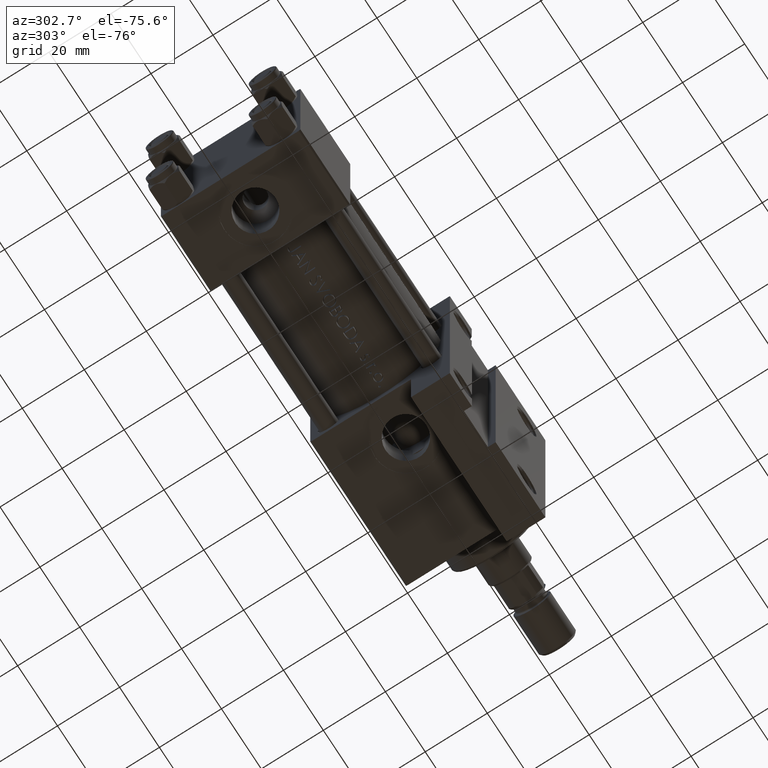
[diagram: clean part render]
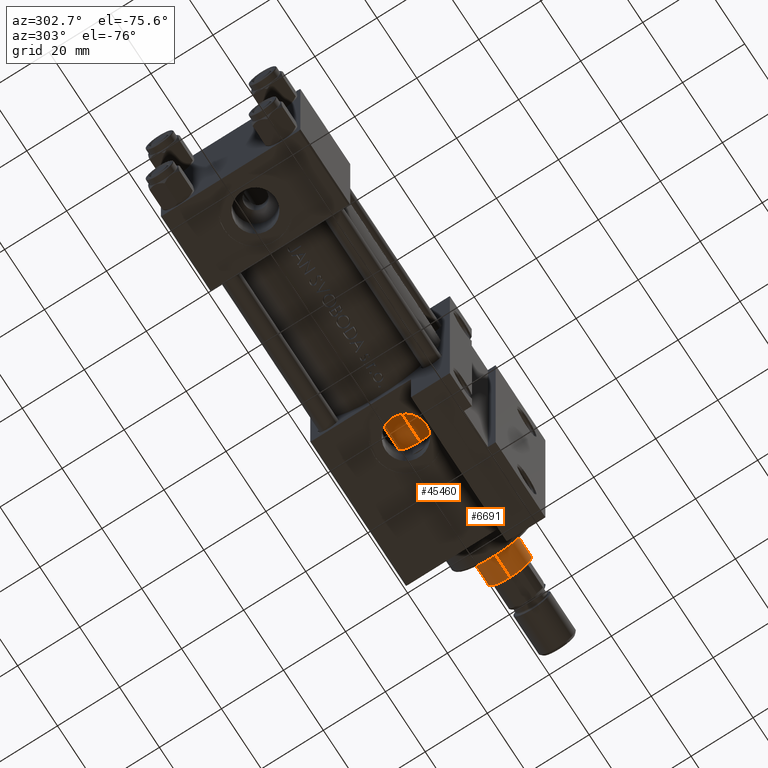
[diagram: same view with one multi-face feature highlighted, each face labeled with its STEP entity id]
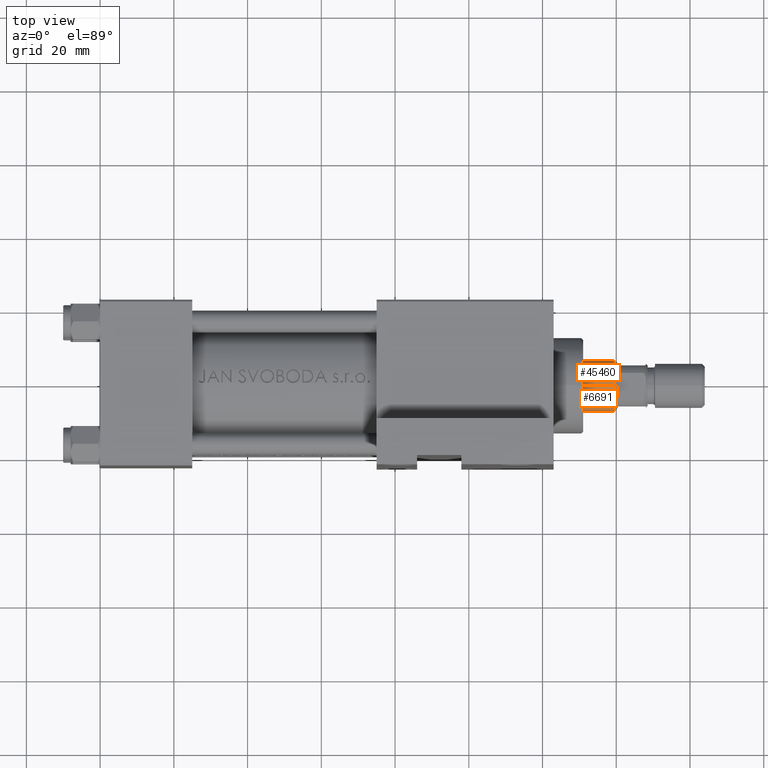
[diagram: same view with one multi-face feature highlighted, each face labeled with its STEP entity id]
A machine part, auxiliary view. The highlighted faces form ONE feature: a constant-radius fillet chain: 2 tangent blend faces with common blend radius 7 mm. The faces share edges in the B-rep.
A second angle (top view) of the same feature is appended — it is thin or edge-on in the first view.
Their STEP definitions:
[1] entity #45460 (Cylinder):
#900 = EDGE_CURVE ( 'NONE', #22090, #5010, #2835, .T. ) ;
#1124 = FACE_OUTER_BOUND ( 'NONE', #17548, .T. ) ;
#2403 = VECTOR ( 'NONE', #28901, 1000.000000000000000 ) ;
#2835 = LINE ( 'NONE', #6498, #2403 ) ;
#3569 = CARTESIAN_POINT ( 'NONE',  ( 7.000000000000000000, 8.572527594031473190E-16, 114.4999999999999858 ) ) ;
#3997 = DIRECTION ( 'NONE',  ( 1.000000000000000000, 0.000000000000000000, 0.000000000000000000 ) ) ;
#4786 = CARTESIAN_POINT ( 'NONE',  ( 0.000000000000000000, 0.000000000000000000, 115.0000000000000000 ) ) ;
#5010 = VERTEX_POINT ( 'NONE', #38528 ) ;
#6390 = CARTESIAN_POINT ( 'NONE',  ( 7.000000000000000000, 8.572527594031473190E-16, 30.00000000000000000 ) ) ;
#6498 = CARTESIAN_POINT ( 'NONE',  ( -7.000000000000000000, 0.000000000000000000, 115.0000000000000000 ) ) ;
#6808 = ORIENTED_EDGE ( 'NONE', *, *, #32160, .T. ) ;
#8142 = DIRECTION ( 'NONE',  ( 0.000000000000000000, 0.000000000000000000, -1.000000000000000000 ) ) ;
#11304 = DIRECTION ( 'NONE',  ( 0.000000000000000000, 0.000000000000000000, 1.000000000000000000 ) ) ;
#11622 = DIRECTION ( 'NONE',  ( -0.000000000000000000, -0.000000000000000000, -1.000000000000000000 ) ) ;
#14195 = ORIENTED_EDGE ( 'NONE', *, *, #24341, .T. ) ;
#15050 = CYLINDRICAL_SURFACE ( 'NONE', #37541, 7.000000000000000000 ) ;
#17548 = EDGE_LOOP ( 'NONE', ( #22791, #14195, #19880, #6808 ) ) ;
#18877 = CARTESIAN_POINT ( 'NONE',  ( 0.000000000000000000, 0.000000000000000000, 30.00000000000000000 ) ) ;
#18977 = CARTESIAN_POINT ( 'NONE',  ( -7.000000000000000000, 0.000000000000000000, 114.4999999999999858 ) ) ;
#19344 = DIRECTION ( 'NONE',  ( 1.000000000000000000, 0.000000000000000000, 0.000000000000000000 ) ) ;
#19880 = ORIENTED_EDGE ( 'NONE', *, *, #900, .T. ) ;
#22090 = VERTEX_POINT ( 'NONE', #18977 ) ;
#22791 = ORIENTED_EDGE ( 'NONE', *, *, #30390, .F. ) ;
#23962 = AXIS2_PLACEMENT_3D ( 'NONE', #18877, #11304, #19344 ) ;
#24341 = EDGE_CURVE ( 'NONE', #44600, #22090, #41763, .T. ) ;
#28901 = DIRECTION ( 'NONE',  ( -0.000000000000000000, -0.000000000000000000, -1.000000000000000000 ) ) ;
#30107 = AXIS2_PLACEMENT_3D ( 'NONE', #37626, #8142, #3997 ) ;
#30390 = EDGE_CURVE ( 'NONE', #44600, #42551, #40089, .T. ) ;
#32160 = EDGE_CURVE ( 'NONE', #5010, #42551, #39541, .T. ) ;
#34276 = DIRECTION ( 'NONE',  ( -1.000000000000000000, 0.000000000000000000, 0.000000000000000000 ) ) ;
#37541 = AXIS2_PLACEMENT_3D ( 'NONE', #4786, #11622, #34276 ) ;
#37626 = CARTESIAN_POINT ( 'NONE',  ( 0.000000000000000000, 0.000000000000000000, 114.4999999999999858 ) ) ;
#38528 = CARTESIAN_POINT ( 'NONE',  ( -7.000000000000000000, 0.000000000000000000, 30.00000000000000000 ) ) ;
#39541 = CIRCLE ( 'NONE', #23962, 7.000000000000000000 ) ;
#40089 = LINE ( 'NONE', #47391, #41044 ) ;
#41044 = VECTOR ( 'NONE', #46678, 1000.000000000000000 ) ;
#41763 = CIRCLE ( 'NONE', #30107, 7.000000000000000000 ) ;
#42551 = VERTEX_POINT ( 'NONE', #6390 ) ;
#44600 = VERTEX_POINT ( 'NONE', #3569 ) ;
#45460 = ADVANCED_FACE ( 'NONE', ( #1124 ), #15050, .T. ) ;
#46678 = DIRECTION ( 'NONE',  ( -0.000000000000000000, -0.000000000000000000, -1.000000000000000000 ) ) ;
#47391 = CARTESIAN_POINT ( 'NONE',  ( 7.000000000000000000, 8.572527594031473190E-16, 115.0000000000000000 ) ) ;
[2] entity #6691 (Cylinder):
#767 = DIRECTION ( 'NONE',  ( 0.000000000000000000, 0.000000000000000000, 1.000000000000000000 ) ) ;
#900 = EDGE_CURVE ( 'NONE', #22090, #5010, #2835, .T. ) ;
#950 = DIRECTION ( 'NONE',  ( 0.000000000000000000, 0.000000000000000000, -1.000000000000000000 ) ) ;
#1476 = DIRECTION ( 'NONE',  ( 1.000000000000000000, 0.000000000000000000, 0.000000000000000000 ) ) ;
#1721 = EDGE_CURVE ( 'NONE', #42551, #5010, #16466, .T. ) ;
#2403 = VECTOR ( 'NONE', #28901, 1000.000000000000000 ) ;
#2835 = LINE ( 'NONE', #6498, #2403 ) ;
#3569 = CARTESIAN_POINT ( 'NONE',  ( 7.000000000000000000, 8.572527594031473190E-16, 114.4999999999999858 ) ) ;
#5010 = VERTEX_POINT ( 'NONE', #38528 ) ;
#6165 = FACE_OUTER_BOUND ( 'NONE', #8542, .T. ) ;
#6390 = CARTESIAN_POINT ( 'NONE',  ( 7.000000000000000000, 8.572527594031473190E-16, 30.00000000000000000 ) ) ;
#6498 = CARTESIAN_POINT ( 'NONE',  ( -7.000000000000000000, 0.000000000000000000, 115.0000000000000000 ) ) ;
#6691 = ADVANCED_FACE ( 'NONE', ( #6165 ), #13248, .T. ) ;
#8542 = EDGE_LOOP ( 'NONE', ( #9642, #34406, #27823, #46988 ) ) ;
#8973 = DIRECTION ( 'NONE',  ( 1.000000000000000000, 0.000000000000000000, 0.000000000000000000 ) ) ;
#9642 = ORIENTED_EDGE ( 'NONE', *, *, #38317, .T. ) ;
#13248 = CYLINDRICAL_SURFACE ( 'NONE', #48173, 7.000000000000000000 ) ;
#16466 = CIRCLE ( 'NONE', #36690, 7.000000000000000000 ) ;
#18977 = CARTESIAN_POINT ( 'NONE',  ( -7.000000000000000000, 0.000000000000000000, 114.4999999999999858 ) ) ;
#19238 = CARTESIAN_POINT ( 'NONE',  ( 0.000000000000000000, 0.000000000000000000, 114.4999999999999858 ) ) ;
#20488 = CARTESIAN_POINT ( 'NONE',  ( 0.000000000000000000, 0.000000000000000000, 30.00000000000000000 ) ) ;
#20791 = DIRECTION ( 'NONE',  ( -1.000000000000000000, 0.000000000000000000, 0.000000000000000000 ) ) ;
#22090 = VERTEX_POINT ( 'NONE', #18977 ) ;
#27823 = ORIENTED_EDGE ( 'NONE', *, *, #1721, .T. ) ;
#28095 = CARTESIAN_POINT ( 'NONE',  ( 0.000000000000000000, 0.000000000000000000, 115.0000000000000000 ) ) ;
#28901 = DIRECTION ( 'NONE',  ( -0.000000000000000000, -0.000000000000000000, -1.000000000000000000 ) ) ;
#30390 = EDGE_CURVE ( 'NONE', #44600, #42551, #40089, .T. ) ;
#34406 = ORIENTED_EDGE ( 'NONE', *, *, #30390, .T. ) ;
#36690 = AXIS2_PLACEMENT_3D ( 'NONE', #20488, #767, #1476 ) ;
#38317 = EDGE_CURVE ( 'NONE', #22090, #44600, #42812, .T. ) ;
#38528 = CARTESIAN_POINT ( 'NONE',  ( -7.000000000000000000, 0.000000000000000000, 30.00000000000000000 ) ) ;
#40089 = LINE ( 'NONE', #47391, #41044 ) ;
#41044 = VECTOR ( 'NONE', #46678, 1000.000000000000000 ) ;
#42551 = VERTEX_POINT ( 'NONE', #6390 ) ;
#42812 = CIRCLE ( 'NONE', #46699, 7.000000000000000000 ) ;
#44600 = VERTEX_POINT ( 'NONE', #3569 ) ;
#46678 = DIRECTION ( 'NONE',  ( -0.000000000000000000, -0.000000000000000000, -1.000000000000000000 ) ) ;
#46699 = AXIS2_PLACEMENT_3D ( 'NONE', #19238, #950, #8973 ) ;
#46988 = ORIENTED_EDGE ( 'NONE', *, *, #900, .F. ) ;
#47089 = DIRECTION ( 'NONE',  ( -0.000000000000000000, -0.000000000000000000, -1.000000000000000000 ) ) ;
#47391 = CARTESIAN_POINT ( 'NONE',  ( 7.000000000000000000, 8.572527594031473190E-16, 115.0000000000000000 ) ) ;
#48173 = AXIS2_PLACEMENT_3D ( 'NONE', #28095, #47089, #20791 ) ;